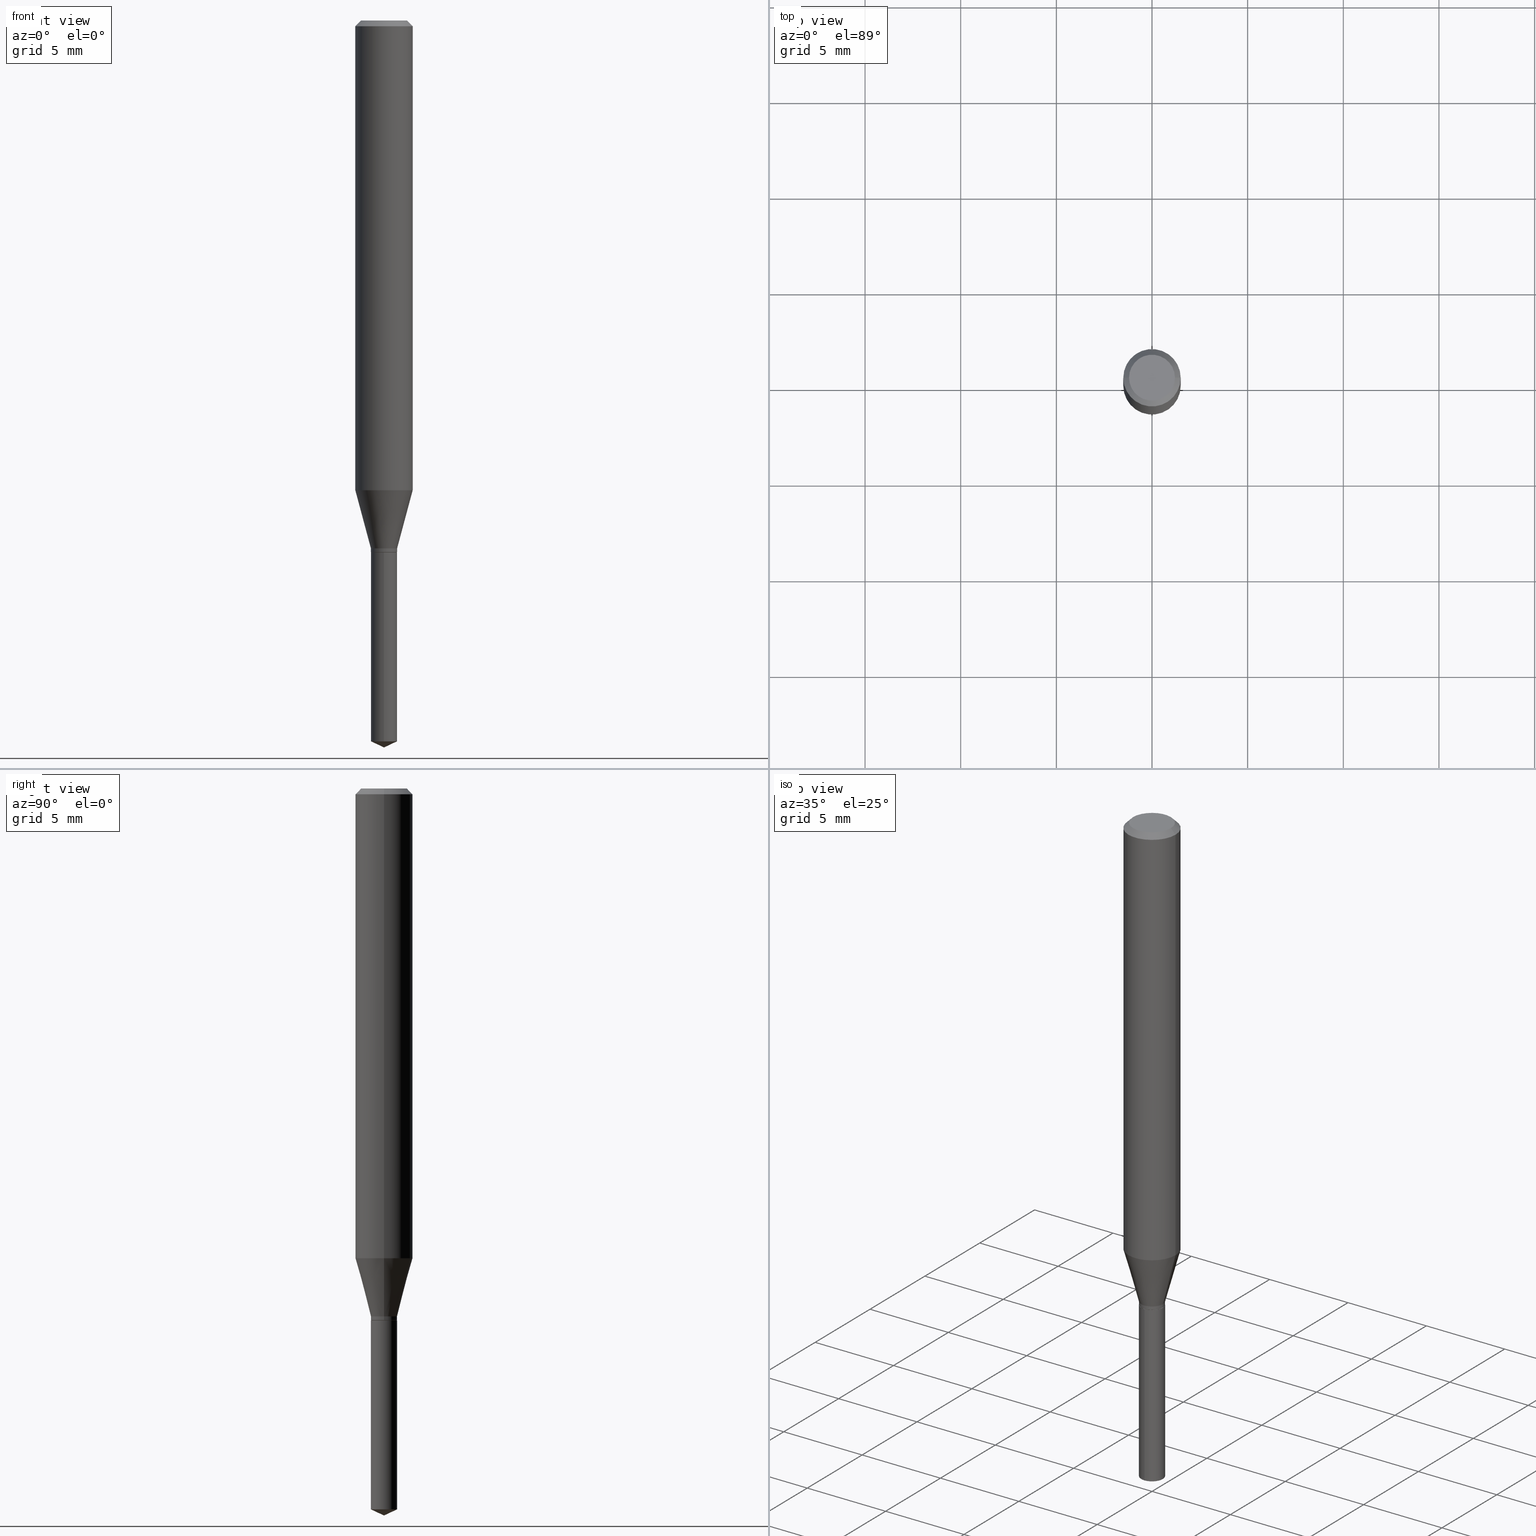
[diagram: canonical four-view strip — front | top / right | iso, engineering-drawing reading convention]
A machine part, canonical four-view strip (front | top / right | iso — engineering-drawing reading convention). The complete STEP part file that produces these views, byte-faithful:
ISO-10303-21;
HEADER;
FILE_DESCRIPTION (( 'STEP AP203' ),
    '1' );
FILE_NAME ('07525.STEP',
    '2024-04-23T22:28:46',
    ( '' ),
    ( '' ),
    'SwSTEP 2.0',
    'SolidWorks 2023',
    '' );
FILE_SCHEMA (( 'CONFIG_CONTROL_DESIGN' ));
ENDSEC;

DATA;
#1 = VECTOR ( 'NONE', #467, 39.37007874015748143 ) ;
#2 = ORIENTED_EDGE ( 'NONE', *, *, #277, .T. ) ;
#3 = APPROVAL_STATUS ( 'not_yet_approved' ) ;
#4 = CC_DESIGN_DATE_AND_TIME_ASSIGNMENT ( #196, #384, ( #94 ) ) ;
#5 = ORIENTED_EDGE ( 'NONE', *, *, #105, .T. ) ;
#6 = APPROVAL_ROLE ( '' ) ;
#7 = ORIENTED_EDGE ( 'NONE', *, *, #219, .F. ) ;
#8 = DATE_AND_TIME ( #381, #191 ) ;
#9 = EDGE_LOOP ( 'NONE', ( #383, #376 ) ) ;
#10 = CARTESIAN_POINT ( 'NONE',  ( -0.02695000000000000173, -3.601654059231846417E-15, -1.086399999999999810 ) ) ;
#11 = CARTESIAN_POINT ( 'NONE',  ( -0.02695000000000000173, 1.914912672873470124E-16, -1.325653006823697257E-30 ) ) ;
#12 = CC_DESIGN_PERSON_AND_ORGANIZATION_ASSIGNMENT ( #335, #457, ( #94 ) ) ;
#13 = FACE_OUTER_BOUND ( 'NONE', #307, .T. ) ;
#14 = ADVANCED_BREP_SHAPE_REPRESENTATION ( '07525', ( #72, #237, #394 ), #73 ) ;
#15 = DIRECTION ( 'NONE',  ( 1.000000000000000000, -6.982962677686266711E-15, 4.876176775795935793E-29 ) ) ;
#16 = AXIS2_PLACEMENT_3D ( 'NONE', #321, #162, #126 ) ;
#17 = EDGE_CURVE ( 'NONE', #186, #310, #37, .T. ) ;
#18 = CARTESIAN_POINT ( 'NONE',  ( 3.627934243417300809E-29, -5.179727030492415655E-15, -1.483533008612722748 ) ) ;
#19 = CARTESIAN_POINT ( 'NONE',  ( -0.05905000000000011628, -2.955294458470109520E-15, -0.9666011690770388576 ) ) ;
#20 = CARTESIAN_POINT ( 'NONE',  ( 2.676565608369631794E-29, -3.821426325363822773E-15, -1.094499999999999806 ) ) ;
#21 = AXIS2_PLACEMENT_3D ( 'NONE', #215, #201, #354 ) ;
#22 = LINE ( 'NONE', #450, #382 ) ;
#23 =( CONVERSION_BASED_UNIT ( 'INCH', #445 ) LENGTH_UNIT ( ) NAMED_UNIT ( #342 ) );
#24 = CARTESIAN_POINT ( 'NONE',  ( 2.676565608369631794E-29, -3.821426325363822773E-15, -1.094499999999999806 ) ) ;
#25 = ORIENTED_EDGE ( 'NONE', *, *, #194, .T. ) ;
#26 = FACE_OUTER_BOUND ( 'NONE', #152, .T. ) ;
#27 = VECTOR ( 'NONE', #205, 39.37007874015748143 ) ;
#28 = ADVANCED_FACE ( 'NONE', ( #253 ), #55, .T. ) ;
#29 = DIRECTION ( 'NONE',  ( -6.328713451373368590E-15, -0.9063077870366483824, 0.4226182617407029940 ) ) ;
#30 = CC_DESIGN_SECURITY_CLASSIFICATION ( #240, ( #282 ) ) ;
#31 = VERTEX_POINT ( 'NONE', #435 ) ;
#32 = FACE_OUTER_BOUND ( 'NONE', #262, .T. ) ;
#33 = ORIENTED_EDGE ( 'NONE', *, *, #219, .T. ) ;
#34 = APPROVAL_DATE_TIME ( #232, #100 ) ;
#35 = ORIENTED_EDGE ( 'NONE', *, *, #286, .F. ) ;
#36 = EDGE_CURVE ( 'NONE', #42, #462, #484, .T. ) ;
#37 = CIRCLE ( 'NONE', #421, 0.02695000000000000173 ) ;
#38 = VECTOR ( 'NONE', #160, 39.37007874015748143 ) ;
#39 = ORGANIZATION ( 'UNSPECIFIED', 'UNSPECIFIED', '' ) ;
#40 = COORDINATED_UNIVERSAL_TIME_OFFSET ( 5, 0, .BEHIND. ) ;
#41 = EDGE_LOOP ( 'NONE', ( #141, #459, #177, #231 ) ) ;
#42 = VERTEX_POINT ( 'NONE', #356 ) ;
#43 = PERSON_AND_ORGANIZATION ( #436, #39 ) ;
#44 = DIRECTION ( 'NONE',  ( 1.000000000000000000, -6.982962677686265133E-15, 0.000000000000000000 ) ) ;
#45 = EDGE_CURVE ( 'NONE', #312, #106, #61, .T. ) ;
#46 = CIRCLE ( 'NONE', #375, 0.02695000000000000173 ) ;
#47 = DIRECTION ( 'NONE',  ( 1.000000000000000000, -6.982962677686266711E-15, 4.876185090822587894E-29 ) ) ;
#48 = LINE ( 'NONE', #451, #27 ) ;
#49 = DIRECTION ( 'NONE',  ( -2.445470214571802116E-29, 3.491479321953280158E-15, 1.000000000000000000 ) ) ;
#50 = UNCERTAINTY_MEASURE_WITH_UNIT (LENGTH_MEASURE( 1.000000000000000082E-05 ), #23, 'distance_accuracy_value', 'NONE');
#51 = LINE ( 'NONE', #399, #1 ) ;
#52 = EDGE_CURVE ( 'NONE', #462, #42, #347, .T. ) ;
#53 = DIRECTION ( 'NONE',  ( -2.445468806185136597E-29, 3.491481338843145583E-15, 1.000000000000000000 ) ) ;
#54 = PLANE ( 'NONE',  #178 ) ;
#55 = CONICAL_SURFACE ( 'NONE', #289, 0.02645000000000000129, 0.7853981633975507526 ) ;
#56 = CIRCLE ( 'NONE', #98, 0.04724000000000000421 ) ;
#57 = CARTESIAN_POINT ( 'NONE',  ( 8.265746106709734507E-48, -1.180129479067563789E-33, -3.380025165646692144E-19 ) ) ;
#58 = CC_DESIGN_APPROVAL ( #100, ( #94 ) ) ;
#59 = DIRECTION ( 'NONE',  ( -2.445468806185136597E-29, 3.491481338843145583E-15, 1.000000000000000000 ) ) ;
#60 = CARTESIAN_POINT ( 'NONE',  ( -0.02695000000000000173, -3.614921688319449844E-15, -1.093999999999999861 ) ) ;
#62 = ORIENTED_EDGE ( 'NONE', *, *, #165, .T. ) ;
#61 = CIRCLE ( 'NONE', #346, 0.02695000000000000173 ) ;
#63 = AXIS2_PLACEMENT_3D ( 'NONE', #411, #331, #481 ) ;
#64 = DIRECTION ( 'NONE',  ( -2.445468806185136597E-29, 3.491481338843145583E-15, 1.000000000000000000 ) ) ;
#65 = EDGE_LOOP ( 'NONE', ( #275, #84, #349, #386 ) ) ;
#66 = CARTESIAN_POINT ( 'NONE',  ( -0.02645000000000000129, -3.633487771755275673E-15, -1.094499999999999806 ) ) ;
#67 =( LENGTH_UNIT ( ) NAMED_UNIT ( * ) SI_UNIT ( $, .METRE. ) );
#68 = DIRECTION ( 'NONE',  ( 1.000000000000000000, -6.982962677686265922E-15, 4.876176775795935793E-29 ) ) ;
#69 = EDGE_LOOP ( 'NONE', ( #313, #224, #380, #170 ) ) ;
#70 =( NAMED_UNIT ( * ) SI_UNIT ( $, .STERADIAN. ) SOLID_ANGLE_UNIT ( ) );
#71 = CIRCLE ( 'NONE', #470, 0.04724000000000000421 ) ;
#72 = MANIFOLD_SOLID_BREP ( 'Body-Move/Copy2[1]', #146 ) ;
#73 =( GEOMETRIC_REPRESENTATION_CONTEXT ( 3 ) GLOBAL_UNCERTAINTY_ASSIGNED_CONTEXT ( ( #50 ) ) GLOBAL_UNIT_ASSIGNED_CONTEXT ( ( #23, #333, #70 ) ) REPRESENTATION_CONTEXT ( 'NONE', 'WORKASPACE' ) );
#74 = EDGE_LOOP ( 'NONE', ( #62, #2, #107, #420 ) ) ;
#75 = APPROVAL_STATUS ( 'not_yet_approved' ) ;
#76 = CARTESIAN_POINT ( 'NONE',  ( 0.05905000000000006077, -4.123439461173744764E-16, 2.879382386107503023E-30 ) ) ;
#77 = EDGE_CURVE ( 'NONE', #332, #42, #395, .T. ) ;
#78 = ORIENTED_EDGE ( 'NONE', *, *, #157, .T. ) ;
#79 = SHAPE_DEFINITION_REPRESENTATION ( #427, #14 ) ;
#80 = CC_DESIGN_PERSON_AND_ORGANIZATION_ASSIGNMENT ( #43, #351, ( #282 ) ) ;
#81 = VERTEX_POINT ( 'NONE', #19 ) ;
#82 = APPROVAL_ROLE ( '' ) ;
#83 = CIRCLE ( 'NONE', #256, 0.02695000000000000173 ) ;
#84 = ORIENTED_EDGE ( 'NONE', *, *, #324, .T. ) ;
#85 = EDGE_LOOP ( 'NONE', ( #172, #267, #300 ) ) ;
#86 = DATE_TIME_ROLE ( 'classification_date' ) ;
#87 = ADVANCED_FACE ( 'NONE', ( #437 ), #464, .T. ) ;
#88 = DIRECTION ( 'NONE',  ( -2.445468806185136597E-29, 3.491481338843145583E-15, 1.000000000000000000 ) ) ;
#89 = VECTOR ( 'NONE', #184, 39.37007874015747433 ) ;
#90 = CARTESIAN_POINT ( 'NONE',  ( 2.888098660104663328E-31, -4.123439461173779030E-17, -0.01181000000000006871 ) ) ;
#91 = PRODUCT ( '07525', '07525', '', ( #308 ) ) ;
#92 = LINE ( 'NONE', #10, #89 ) ;
#93 = CARTESIAN_POINT ( 'NONE',  ( 3.658667988020872822E-29, -5.223602213574301462E-15, -1.496099999999999985 ) ) ;
#94 = PRODUCT_DEFINITION ( 'UNKNOWN', '', #282, #486 ) ;
#95 = DIRECTION ( 'NONE',  ( -2.445468806185136597E-29, 3.491481338843145583E-15, 1.000000000000000000 ) ) ;
#96 = DIRECTION ( 'NONE',  ( -2.445468806185136597E-29, 3.491481338843145583E-15, 1.000000000000000000 ) ) ;
#97 = DIRECTION ( 'NONE',  ( -2.445470214571802116E-29, 3.491479321953280158E-15, 1.000000000000000000 ) ) ;
#98 = AXIS2_PLACEMENT_3D ( 'NONE', #402, #59, #47 ) ;
#99 = LINE ( 'NONE', #405, #125 ) ;
#100 = APPROVAL ( #75, 'UNSPECIFIED' ) ;
#101 = ORIENTED_EDGE ( 'NONE', *, *, #352, .F. ) ;
#102 = CARTESIAN_POINT ( 'NONE',  ( -0.02645000000000000129, -3.630838544581165261E-15, -1.094499999999999806 ) ) ;
#103 = CIRCLE ( 'NONE', #401, 0.02645000000000000129 ) ;
#104 = DIRECTION ( 'NONE',  ( 1.000000000000000000, -6.982962677686266711E-15, 4.876176775795935793E-29 ) ) ;
#105 = EDGE_CURVE ( 'NONE', #388, #271, #83, .T. ) ;
#106 = VERTEX_POINT ( 'NONE', #325 ) ;
#107 = ORIENTED_EDGE ( 'NONE', *, *, #52, .F. ) ;
#108 = DIRECTION ( 'NONE',  ( -1.000000000000000000, 6.982962677686266711E-15, 0.000000000000000000 ) ) ;
#109 = ORIENTED_EDGE ( 'NONE', *, *, #17, .F. ) ;
#110 = ADVANCED_FACE ( 'NONE', ( #360 ), #323, .T. ) ;
#111 = CARTESIAN_POINT ( 'NONE',  ( 0.02695000000000000173, -4.007871428858045665E-15, -1.093999999999999861 ) ) ;
#112 = ORIENTED_EDGE ( 'NONE', *, *, #294, .F. ) ;
#113 = DIRECTION ( 'NONE',  ( -1.000000000000000000, 6.982962677686265922E-15, -4.876176775795935793E-29 ) ) ;
#114 = VERTEX_POINT ( 'NONE', #93 ) ;
#115 = PERSON_AND_ORGANIZATION ( #436, #39 ) ;
#116 = ORIENTED_EDGE ( 'NONE', *, *, #352, .T. ) ;
#117 = CIRCLE ( 'NONE', #461, 0.02695000000000000173 ) ;
#118 = ORIENTED_EDGE ( 'NONE', *, *, #173, .T. ) ;
#119 = EDGE_CURVE ( 'NONE', #280, #379, #103, .T. ) ;
#120 = AXIS2_PLACEMENT_3D ( 'NONE', #400, #322, #263 ) ;
#121 = DIRECTION ( 'NONE',  ( -2.445468806185136597E-29, 3.491481338843145583E-15, 1.000000000000000000 ) ) ;
#122 = CC_DESIGN_DATE_AND_TIME_ASSIGNMENT ( #468, #86, ( #240 ) ) ;
#123 = DIRECTION ( 'NONE',  ( -2.445468806185136597E-29, 3.491481338843145583E-15, 1.000000000000000000 ) ) ;
#124 = EDGE_CURVE ( 'NONE', #106, #271, #51, .T. ) ;
#125 = VECTOR ( 'NONE', #444, 39.37007874015748143 ) ;
#126 = DIRECTION ( 'NONE',  ( -6.982962677686267499E-15, -1.000000000000000000, 3.520397390770472803E-15 ) ) ;
#127 = APPROVAL_PERSON_ORGANIZATION ( #369, #100, #406 ) ;
#128 = FACE_OUTER_BOUND ( 'NONE', #69, .T. ) ;
#129 = DIRECTION ( 'NONE',  ( 1.000000000000000000, -6.982962677686265133E-15, 0.000000000000000000 ) ) ;
#130 = CYLINDRICAL_SURFACE ( 'NONE', #439, 0.02695000000000000173 ) ;
#131 = DIRECTION ( 'NONE',  ( -2.445468806185136597E-29, 3.491481338843145583E-15, 1.000000000000000000 ) ) ;
#132 = DIRECTION ( 'NONE',  ( 0.7071067811866199593, -2.468850131083015945E-15, 0.7071067811864750752 ) ) ;
#133 = VECTOR ( 'NONE', #132, 39.37007874015748143 ) ;
#134 = EDGE_CURVE ( 'NONE', #310, #241, #391, .T. ) ;
#135 = LINE ( 'NONE', #66, #247 ) ;
#136 = CC_DESIGN_PERSON_AND_ORGANIZATION_ASSIGNMENT ( #392, #238, ( #240 ) ) ;
#137 = CARTESIAN_POINT ( 'NONE',  ( 1.914912672873833000E-16, 0.02694999999999617840, -1.094500000000000028 ) ) ;
#138 = CYLINDRICAL_SURFACE ( 'NONE', #305, 0.05905000000000006077 ) ;
#139 = ADVANCED_FACE ( 'NONE', ( #13 ), #54, .F. ) ;
#140 = DIRECTION ( 'NONE',  ( -2.445470214571802396E-29, 3.491479321953280158E-15, 1.000000000000000000 ) ) ;
#141 = ORIENTED_EDGE ( 'NONE', *, *, #324, .F. ) ;
#142 = AXIS2_PLACEMENT_3D ( 'NONE', #24, #334, #374 ) ;
#143 = CC_DESIGN_PERSON_AND_ORGANIZATION_ASSIGNMENT ( #424, #276, ( #282 ) ) ;
#144 = DIRECTION ( 'NONE',  ( 1.000000000000000000, -6.982962677686264344E-15, 0.000000000000000000 ) ) ;
#145 = ORIENTED_EDGE ( 'NONE', *, *, #248, .T. ) ;
#146 = CLOSED_SHELL ( 'NONE', ( #417, #147, #214, #396, #139 ) ) ;
#147 = ADVANCED_FACE ( 'NONE', ( #475 ), #281, .T. ) ;
#148 = AXIS2_PLACEMENT_3D ( 'NONE', #245, #88, #15 ) ;
#149 = ORIENTED_EDGE ( 'NONE', *, *, #299, .T. ) ;
#150 = ORIENTED_EDGE ( 'NONE', *, *, #269, .F. ) ;
#151 = APPROVAL_DATE_TIME ( #8, #408 ) ;
#152 = EDGE_LOOP ( 'NONE', ( #112, #197, #343, #425 ) ) ;
#153 = APPROVAL_DATE_TIME ( #389, #279 ) ;
#154 = ORIENTED_EDGE ( 'NONE', *, *, #202, .T. ) ;
#155 = CARTESIAN_POINT ( 'NONE',  ( 2.675342873966538993E-29, -3.819680584694400481E-15, -1.093999999999999861 ) ) ;
#156 = CARTESIAN_POINT ( 'NONE',  ( 2.676565608369631234E-29, -3.821426325363821984E-15, -1.094499999999999806 ) ) ;
#157 = EDGE_CURVE ( 'NONE', #332, #31, #56, .T. ) ;
#158 = DIRECTION ( 'NONE',  ( 6.982962677686265922E-15, 1.000000000000000000, -3.491479321953280158E-15 ) ) ;
#159 = AXIS2_PLACEMENT_3D ( 'NONE', #250, #397, #108 ) ;
#160 = DIRECTION ( 'NONE',  ( -0.7071067811865453523, 2.468850131082234184E-15, -0.7071067811865496822 ) ) ;
#161 = APPROVAL_PERSON_ORGANIZATION ( #204, #279, #6 ) ;
#162 = DIRECTION ( 'NONE',  ( -2.445470214571802116E-29, 3.491479321953280158E-15, 1.000000000000000000 ) ) ;
#163 = DIRECTION ( 'NONE',  ( -6.982962677686265133E-15, -1.000000000000000000, 5.068363624609022710E-15 ) ) ;
#164 = DIRECTION ( 'NONE',  ( -6.982962677686265133E-15, -1.000000000000000000, 0.000000000000000000 ) ) ;
#165 = EDGE_CURVE ( 'NONE', #241, #81, #291, .T. ) ;
#166 = DIRECTION ( 'NONE',  ( -2.445470214571802116E-29, 3.491479321953280158E-15, 1.000000000000000000 ) ) ;
#167 = DIRECTION ( 'NONE',  ( 1.000000000000000000, -6.982962677686264344E-15, 0.000000000000000000 ) ) ;
#168 = VECTOR ( 'NONE', #207, 39.37007874015747433 ) ;
#169 = PRODUCT_RELATED_PRODUCT_CATEGORY ( 'detail', '', ( #91 ) ) ;
#170 = ORIENTED_EDGE ( 'NONE', *, *, #248, .F. ) ;
#171 = CARTESIAN_POINT ( 'NONE',  ( 6.623467627228202224E-29, 1.830762009353637179E-15, -1.094499999999999806 ) ) ;
#172 = ORIENTED_EDGE ( 'NONE', *, *, #194, .F. ) ;
#173 = EDGE_CURVE ( 'NONE', #278, #186, #285, .T. ) ;
#174 = DIRECTION ( 'NONE',  ( -6.982962677686267499E-15, -1.000000000000000000, 3.520397390770472803E-15 ) ) ;
#175 = CALENDAR_DATE ( 2024, 23, 4 ) ;
#176 = CARTESIAN_POINT ( 'NONE',  ( -1.881908441636181167E-16, -0.02695000000000382159, -1.094499999999999806 ) ) ;
#177 = ORIENTED_EDGE ( 'NONE', *, *, #134, .T. ) ;
#178 = AXIS2_PLACEMENT_3D ( 'NONE', #469, #428, #158 ) ;
#179 = CYLINDRICAL_SURFACE ( 'NONE', #298, 0.02695000000000000173 ) ;
#180 = AXIS2_PLACEMENT_3D ( 'NONE', #412, #367, #345 ) ;
#181 = LINE ( 'NONE', #274, #297 ) ;
#182 = ORIENTED_EDGE ( 'NONE', *, *, #254, .T. ) ;
#183 = DIRECTION ( 'NONE',  ( 0.000000000000000000, 0.000000000000000000, 1.000000000000000000 ) ) ;
#184 = DIRECTION ( 'NONE',  ( -0.2588190451025213501, 5.211531920934551042E-15, 0.9659258262890682012 ) ) ;
#185 = CC_DESIGN_PERSON_AND_ORGANIZATION_ASSIGNMENT ( #452, #272, ( #91 ) ) ;
#186 = VERTEX_POINT ( 'NONE', #261 ) ;
#187 = COORDINATED_UNIVERSAL_TIME_OFFSET ( 5, 0, .BEHIND. ) ;
#188 = ORIENTED_EDGE ( 'NONE', *, *, #318, .T. ) ;
#189 = APPROVAL_STATUS ( 'not_yet_approved' ) ;
#190 = CONICAL_SURFACE ( 'NONE', #159, 0.05904999999999999832, 0.7853981633974452814 ) ;
#191 = LOCAL_TIME ( 18, 28, 46.00000000000000000, #419 ) ;
#192 = ORIENTED_EDGE ( 'NONE', *, *, #370, .F. ) ;
#193 = SECURITY_CLASSIFICATION_LEVEL ( 'unclassified' ) ;
#194 = EDGE_CURVE ( 'NONE', #114, #312, #22, .T. ) ;
#195 = ORIENTED_EDGE ( 'NONE', *, *, #277, .F. ) ;
#196 = DATE_AND_TIME ( #314, #447 ) ;
#197 = ORIENTED_EDGE ( 'NONE', *, *, #157, .F. ) ;
#198 = COORDINATED_UNIVERSAL_TIME_OFFSET ( 5, 0, .BEHIND. ) ;
#199 = LINE ( 'NONE', #76, #414 ) ;
#200 = CIRCLE ( 'NONE', #142, 0.02695000000000000173 ) ;
#201 = DIRECTION ( 'NONE',  ( -2.445468806185136597E-29, 3.491481338843145583E-15, 1.000000000000000000 ) ) ;
#202 = EDGE_CURVE ( 'NONE', #379, #280, #239, .T. ) ;
#203 = CONICAL_SURFACE ( 'NONE', #180, 0.05904999999999999832, 0.7853981633974452814 ) ;
#204 = PERSON_AND_ORGANIZATION ( #436, #39 ) ;
#205 = DIRECTION ( 'NONE',  ( -2.445468806185136877E-29, 3.491481338843145188E-15, 1.000000000000000000 ) ) ;
#206 = APPLICATION_CONTEXT ( 'configuration controlled 3d designs of mechanical parts and assemblies' ) ;
#207 = DIRECTION ( 'NONE',  ( 0.2588190451025213501, 1.565188264969621968E-15, 0.9659258262890682012 ) ) ;
#208 = DIRECTION ( 'NONE',  ( -6.982962677686265133E-15, -1.000000000000000000, 5.068363624609022710E-15 ) ) ;
#209 = CARTESIAN_POINT ( 'NONE',  ( -0.05904999999999999832, 3.711095515056362547E-16, -0.01181000000000006871 ) ) ;
#210 = DIRECTION ( 'NONE',  ( 1.000000000000000000, -6.982962677686265133E-15, 0.000000000000000000 ) ) ;
#211 = CIRCLE ( 'NONE', #63, 0.05905000000000011628 ) ;
#212 = CARTESIAN_POINT ( 'NONE',  ( 2.676565608369631794E-29, -3.821426325363822773E-15, -1.094499999999999806 ) ) ;
#213 = DIRECTION ( 'NONE',  ( 1.000000000000000000, -6.982962677686266711E-15, 4.876185090822587894E-29 ) ) ;
#214 = ADVANCED_FACE ( 'NONE', ( #371 ), #359, .T. ) ;
#215 = CARTESIAN_POINT ( 'NONE',  ( 2.363793006999983413E-29, -3.374869943936449013E-15, -0.9666011690770388576 ) ) ;
#216 = ORIENTED_EDGE ( 'NONE', *, *, #119, .T. ) ;
#217 = CARTESIAN_POINT ( 'NONE',  ( 0.02645000000000000129, -4.006125688188624162E-15, -1.094499999999999806 ) ) ;
#218 = VECTOR ( 'NONE', #244, 39.37007874015748143 ) ;
#219 = EDGE_CURVE ( 'NONE', #271, #388, #200, .T. ) ;
#220 = ORIENTED_EDGE ( 'NONE', *, *, #404, .T. ) ;
#221 = DIRECTION ( 'NONE',  ( 2.438088387897960049E-29, -3.491481338843145188E-15, -1.000000000000000000 ) ) ;
#222 = CARTESIAN_POINT ( 'NONE',  ( 2.676565608369631234E-29, -3.821426325363821984E-15, -1.094499999999999806 ) ) ;
#223 = DIRECTION ( 'NONE',  ( 1.000000000000000000, 0.000000000000000000, 0.000000000000000000 ) ) ;
#224 = ORIENTED_EDGE ( 'NONE', *, *, #124, .T. ) ;
#225 = DIRECTION ( 'NONE',  ( -2.445468806185136597E-29, 3.491481338843145583E-15, 1.000000000000000000 ) ) ;
#226 = ORIENTED_EDGE ( 'NONE', *, *, #294, .T. ) ;
#227 = VECTOR ( 'NONE', #140, 39.37007874015748143 ) ;
#228 = CARTESIAN_POINT ( 'NONE',  ( 0.000000000000000000, 0.000000000000000000, 0.000000000000000000 ) ) ;
#229 = ADVANCED_FACE ( 'NONE', ( #482 ), #337, .F. ) ;
#230 = LOCAL_TIME ( 18, 28, 46.00000000000000000, #187 ) ;
#231 = ORIENTED_EDGE ( 'NONE', *, *, #254, .F. ) ;
#232 = DATE_AND_TIME ( #175, #230 ) ;
#233 = DIRECTION ( 'NONE',  ( 6.439704144417024042E-15, 0.9063077870366512689, 0.4226182617406966657 ) ) ;
#234 = ORIENTED_EDGE ( 'NONE', *, *, #77, .F. ) ;
#235 = APPLICATION_CONTEXT ( 'configuration controlled 3d designs of mechanical parts and assemblies' ) ;
#236 = EDGE_LOOP ( 'NONE', ( #456, #226, #448, #234 ) ) ;
#237 = MANIFOLD_SOLID_BREP ( 'Body-Move/Copy2[2]', #365 ) ;
#238 = PERSON_AND_ORGANIZATION_ROLE ( 'classification_officer' ) ;
#239 = CIRCLE ( 'NONE', #454, 0.02645000000000000129 ) ;
#240 = SECURITY_CLASSIFICATION ( '', '', #193 ) ;
#241 = VERTEX_POINT ( 'NONE', #303 ) ;
#242 = EDGE_LOOP ( 'NONE', ( #418, #220, #145, #7 ) ) ;
#243 = CALENDAR_DATE ( 2024, 23, 4 ) ;
#244 = DIRECTION ( 'NONE',  ( 0.7071067811865453523, -7.319954787623248157E-15, -0.7071067811865496822 ) ) ;
#245 = CARTESIAN_POINT ( 'NONE',  ( 0.000000000000000000, 0.000000000000000000, 0.000000000000000000 ) ) ;
#246 = CARTESIAN_POINT ( 'NONE',  ( -1.881908441636086010E-16, -0.02695000000000517468, -1.483533008612722748 ) ) ;
#247 = VECTOR ( 'NONE', #440, 39.37007874015748143 ) ;
#248 = EDGE_CURVE ( 'NONE', #312, #388, #328, .T. ) ;
#249 = DIRECTION ( 'NONE',  ( 1.000000000000000000, -6.982962677686266711E-15, 0.000000000000000000 ) ) ;
#250 = CARTESIAN_POINT ( 'NONE',  ( 2.888098660104663328E-31, -4.123439461173779030E-17, -0.01181000000000006871 ) ) ;
#251 = DIRECTION ( 'NONE',  ( -2.445468806185136597E-29, 3.491481338843145583E-15, 1.000000000000000000 ) ) ;
#252 = CARTESIAN_POINT ( 'NONE',  ( 2.656757311039532110E-29, -3.793145326519192838E-15, -1.086399999999999810 ) ) ;
#253 = FACE_OUTER_BOUND ( 'NONE', #366, .T. ) ;
#254 = EDGE_CURVE ( 'NONE', #81, #241, #211, .T. ) ;
#255 = CYLINDRICAL_SURFACE ( 'NONE', #341, 0.02695000000000000173 ) ;
#256 = AXIS2_PLACEMENT_3D ( 'NONE', #212, #97, #433 ) ;
#257 = DIRECTION ( 'NONE',  ( 1.000000000000000000, -6.982962677686264344E-15, 0.000000000000000000 ) ) ;
#258 = CC_DESIGN_APPROVAL ( #279, ( #240 ) ) ;
#259 = CARTESIAN_POINT ( 'NONE',  ( -1.881908441636181167E-16, -0.02695000000000382159, -1.094499999999999806 ) ) ;
#260 = EDGE_CURVE ( 'NONE', #280, #278, #135, .T. ) ;
#261 = CARTESIAN_POINT ( 'NONE',  ( -0.02695000000000000173, -3.614921688319449844E-15, -1.086399999999999810 ) ) ;
#262 = EDGE_LOOP ( 'NONE', ( #302, #216, #311, #344 ) ) ;
#263 = DIRECTION ( 'NONE',  ( -6.982962677686265133E-15, -1.000000000000000000, 0.000000000000000000 ) ) ;
#264 = PLANE ( 'NONE',  #432 ) ;
#265 = CARTESIAN_POINT ( 'NONE',  ( 4.132873053354867254E-48, -5.900647395337818946E-34, -1.690012582823346072E-19 ) ) ;
#266 = DIRECTION ( 'NONE',  ( -2.438088387897960049E-29, 3.491481338843145188E-15, 1.000000000000000000 ) ) ;
#267 = ORIENTED_EDGE ( 'NONE', *, *, #370, .T. ) ;
#268 = FACE_OUTER_BOUND ( 'NONE', #317, .T. ) ;
#269 = EDGE_CURVE ( 'NONE', #379, #353, #477, .T. ) ;
#271 = VERTEX_POINT ( 'NONE', #137 ) ;
#270 = AXIS2_PLACEMENT_3D ( 'NONE', #90, #251, #296 ) ;
#272 = PERSON_AND_ORGANIZATION_ROLE ( 'design_owner' ) ;
#273 = CONICAL_SURFACE ( 'NONE', #378, 0.02645000000000000129, 0.7853981633975507526 ) ;
#274 = CARTESIAN_POINT ( 'NONE',  ( 3.658668015054778287E-29, -5.223602213574301462E-15, -1.496099999999999985 ) ) ;
#275 = ORIENTED_EDGE ( 'NONE', *, *, #286, .T. ) ;
#276 = PERSON_AND_ORGANIZATION_ROLE ( 'creator' ) ;
#277 = EDGE_CURVE ( 'NONE', #81, #42, #99, .T. ) ;
#278 = VERTEX_POINT ( 'NONE', #60 ) ;
#279 = APPROVAL ( #189, 'UNSPECIFIED' ) ;
#280 = VERTEX_POINT ( 'NONE', #102 ) ;
#281 = CONICAL_SURFACE ( 'NONE', #16, 84.42940631927388040, 1.134464013796313786 ) ;
#282 = PRODUCT_DEFINITION_FORMATION_WITH_SPECIFIED_SOURCE ( 'ANY', '', #91, .NOT_KNOWN. ) ;
#283 = ORIENTED_EDGE ( 'NONE', *, *, #173, .F. ) ;
#284 = CARTESIAN_POINT ( 'NONE',  ( 2.656757311039532110E-29, -3.793145326519192838E-15, -1.086399999999999810 ) ) ;
#285 = LINE ( 'NONE', #11, #485 ) ;
#286 = EDGE_CURVE ( 'NONE', #310, #186, #338, .T. ) ;
#287 = CARTESIAN_POINT ( 'NONE',  ( 0.02695000000000000173, -3.981336170682838022E-15, -1.086399999999999810 ) ) ;
#288 = DIRECTION ( 'NONE',  ( 1.000000000000000000, -6.982962677686265133E-15, 0.000000000000000000 ) ) ;
#289 = AXIS2_PLACEMENT_3D ( 'NONE', #156, #358, #320 ) ;
#290 = LINE ( 'NONE', #466, #218 ) ;
#291 = CIRCLE ( 'NONE', #21, 0.05905000000000011628 ) ;
#292 = CARTESIAN_POINT ( 'NONE',  ( 2.888098660104663328E-31, -4.123439461173779030E-17, -0.01181000000000006871 ) ) ;
#293 = CARTESIAN_POINT ( 'NONE',  ( 2.656757311039532110E-29, -3.793145326519192838E-15, -1.086399999999999810 ) ) ;
#294 = EDGE_CURVE ( 'NONE', #31, #462, #290, .T. ) ;
#295 = CARTESIAN_POINT ( 'NONE',  ( 0.000000000000000000, 0.000000000000000000, 0.000000000000000000 ) ) ;
#296 = DIRECTION ( 'NONE',  ( 1.000000000000000000, -6.982962677686266711E-15, 0.000000000000000000 ) ) ;
#297 = VECTOR ( 'NONE', #233, 39.37007874015748143 ) ;
#298 = AXIS2_PLACEMENT_3D ( 'NONE', #413, #410, #487 ) ;
#299 = EDGE_CURVE ( 'NONE', #353, #278, #46, .T. ) ;
#300 = ORIENTED_EDGE ( 'NONE', *, *, #45, .F. ) ;
#301 = DIRECTION ( 'NONE',  ( -2.445468806185136597E-29, 3.491481338843145583E-15, 1.000000000000000000 ) ) ;
#302 = ORIENTED_EDGE ( 'NONE', *, *, #260, .F. ) ;
#303 = CARTESIAN_POINT ( 'NONE',  ( 0.05905000000000011628, -3.787213890053824327E-15, -0.9666011690770388576 ) ) ;
#304 = CARTESIAN_POINT ( 'NONE',  ( 0.000000000000000000, 0.000000000000000000, 0.000000000000000000 ) ) ;
#305 = AXIS2_PLACEMENT_3D ( 'NONE', #304, #64, #104 ) ;
#306 = DIRECTION ( 'NONE',  ( -2.445468806185136597E-29, 3.491481338843145583E-15, 1.000000000000000000 ) ) ;
#307 = EDGE_LOOP ( 'NONE', ( #5, #33 ) ) ;
#308 = MECHANICAL_CONTEXT ( 'NONE', #206, 'mechanical' ) ;
#310 = VERTEX_POINT ( 'NONE', #287 ) ;
#309 = AXIS2_PLACEMENT_3D ( 'NONE', #364, #368, #174 ) ;
#311 = ORIENTED_EDGE ( 'NONE', *, *, #269, .T. ) ;
#312 = VERTEX_POINT ( 'NONE', #246 ) ;
#313 = ORIENTED_EDGE ( 'NONE', *, *, #45, .T. ) ;
#314 = CALENDAR_DATE ( 2024, 23, 4 ) ;
#315 = AXIS2_PLACEMENT_3D ( 'NONE', #473, #398, #129 ) ;
#316 = LOCAL_TIME ( 18, 28, 46.00000000000000000, #40 ) ;
#317 = EDGE_LOOP ( 'NONE', ( #149, #118, #35, #101 ) ) ;
#318 = EDGE_CURVE ( 'NONE', #241, #462, #199, .T. ) ;
#319 = DIRECTION ( 'NONE',  ( 1.000000000000000000, -6.982962677686265133E-15, 0.000000000000000000 ) ) ;
#320 = DIRECTION ( 'NONE',  ( 1.000000000000000000, -6.982962677686264344E-15, 0.000000000000000000 ) ) ;
#321 = CARTESIAN_POINT ( 'NONE',  ( -9.261968845786000133E-28, 1.322362114038720264E-13, 37.87397874015748300 ) ) ;
#322 = DIRECTION ( 'NONE',  ( -2.445470214571802116E-29, 3.491479321953280158E-15, 1.000000000000000000 ) ) ;
#323 = CONICAL_SURFACE ( 'NONE', #315, 0.02695000000000000173, 0.2617993877991500740 ) ;
#324 = EDGE_CURVE ( 'NONE', #186, #81, #92, .T. ) ;
#325 = CARTESIAN_POINT ( 'NONE',  ( 1.914912672873832260E-16, 0.02694999999999482185, -1.483533008612722748 ) ) ;
#326 = APPROVAL_PERSON_ORGANIZATION ( #115, #408, #82 ) ;
#327 = DIRECTION ( 'NONE',  ( -2.445470214571802116E-29, 3.491479321953280158E-15, 1.000000000000000000 ) ) ;
#328 = LINE ( 'NONE', #176, #227 ) ;
#329 = CARTESIAN_POINT ( 'NONE',  ( 2.676565608369631794E-29, -3.821426325363822773E-15, -1.094499999999999806 ) ) ;
#330 = EDGE_LOOP ( 'NONE', ( #283, #339, #116, #109 ) ) ;
#331 = DIRECTION ( 'NONE',  ( -2.445468806185136597E-29, 3.491481338843145583E-15, 1.000000000000000000 ) ) ;
#332 = VERTEX_POINT ( 'NONE', #455 ) ;
#333 =( NAMED_UNIT ( * ) PLANE_ANGLE_UNIT ( ) SI_UNIT ( $, .RADIAN. ) );
#334 = DIRECTION ( 'NONE',  ( -2.445470214571802116E-29, 3.491479321953280158E-15, 1.000000000000000000 ) ) ;
#335 = PERSON_AND_ORGANIZATION ( #436, #39 ) ;
#336 = EDGE_CURVE ( 'NONE', #278, #353, #117, .T. ) ;
#337 = PLANE ( 'NONE',  #422 ) ;
#338 = CIRCLE ( 'NONE', #407, 0.02695000000000000173 ) ;
#339 = ORIENTED_EDGE ( 'NONE', *, *, #336, .T. ) ;
#340 = CARTESIAN_POINT ( 'NONE',  ( 2.676565608369631234E-29, -3.821426325363821984E-15, -1.094499999999999806 ) ) ;
#341 = AXIS2_PLACEMENT_3D ( 'NONE', #20, #166, #208 ) ;
#342 = DIMENSIONAL_EXPONENTS ( 1.000000000000000000, 0.000000000000000000, 0.000000000000000000, 0.000000000000000000, 0.000000000000000000, 0.000000000000000000, 0.000000000000000000 ) ;
#343 = ORIENTED_EDGE ( 'NONE', *, *, #77, .T. ) ;
#344 = ORIENTED_EDGE ( 'NONE', *, *, #336, .F. ) ;
#345 = DIRECTION ( 'NONE',  ( -1.000000000000000000, 6.982962677686266711E-15, 0.000000000000000000 ) ) ;
#346 = AXIS2_PLACEMENT_3D ( 'NONE', #18, #327, #164 ) ;
#348 = ORIENTED_EDGE ( 'NONE', *, *, #36, .F. ) ;
#347 = CIRCLE ( 'NONE', #270, 0.05904999999999999832 ) ;
#349 = ORIENTED_EDGE ( 'NONE', *, *, #165, .F. ) ;
#350 = ORIENTED_EDGE ( 'NONE', *, *, #299, .F. ) ;
#351 = PERSON_AND_ORGANIZATION_ROLE ( 'design_supplier' ) ;
#352 = EDGE_CURVE ( 'NONE', #353, #310, #48, .T. ) ;
#353 = VERTEX_POINT ( 'NONE', #111 ) ;
#354 = DIRECTION ( 'NONE',  ( 1.000000000000000000, -6.982962677686266711E-15, 0.000000000000000000 ) ) ;
#355 = FACE_OUTER_BOUND ( 'NONE', #236, .T. ) ;
#356 = CARTESIAN_POINT ( 'NONE',  ( -0.05904999999999999832, -1.288476683807753089E-15, -0.01181000000000006871 ) ) ;
#357 = ADVANCED_FACE ( 'NONE', ( #355 ), #190, .T. ) ;
#358 = DIRECTION ( 'NONE',  ( -2.445468806185136597E-29, 3.491481338843145583E-15, 1.000000000000000000 ) ) ;
#359 = CONICAL_SURFACE ( 'NONE', #309, 84.42940631927388040, 1.134464013796313786 ) ;
#360 = FACE_OUTER_BOUND ( 'NONE', #65, .T. ) ;
#361 = DIRECTION ( 'NONE',  ( 1.000000000000000000, -6.982962677686267499E-15, 4.876176775795936353E-29 ) ) ;
#362 = CARTESIAN_POINT ( 'NONE',  ( 0.02695000000000000173, -3.981336170682838022E-15, -1.086399999999999810 ) ) ;
#363 = FACE_OUTER_BOUND ( 'NONE', #242, .T. ) ;
#364 = CARTESIAN_POINT ( 'NONE',  ( -9.261968845786000133E-28, 1.322362114038720264E-13, 37.87397874015748300 ) ) ;
#365 = CLOSED_SHELL ( 'NONE', ( #28, #357, #87, #110, #488, #438, #429, #453, #480, #443, #229, #476 ) ) ;
#366 = EDGE_LOOP ( 'NONE', ( #154, #415, #350, #150 ) ) ;
#367 = DIRECTION ( 'NONE',  ( 2.445468806185136597E-29, -3.491481338843145583E-15, -1.000000000000000000 ) ) ;
#368 = DIRECTION ( 'NONE',  ( -2.445470214571802116E-29, 3.491479321953280158E-15, 1.000000000000000000 ) ) ;
#369 = PERSON_AND_ORGANIZATION ( #436, #39 ) ;
#370 = EDGE_CURVE ( 'NONE', #114, #106, #181, .T. ) ;
#371 = FACE_OUTER_BOUND ( 'NONE', #490, .T. ) ;
#372 = EDGE_LOOP ( 'NONE', ( #78, #441 ) ) ;
#373 = FACE_OUTER_BOUND ( 'NONE', #372, .T. ) ;
#374 = DIRECTION ( 'NONE',  ( -6.982962677686265133E-15, -1.000000000000000000, 5.068363624609022710E-15 ) ) ;
#375 = AXIS2_PLACEMENT_3D ( 'NONE', #431, #390, #44 ) ;
#376 = ORIENTED_EDGE ( 'NONE', *, *, #119, .F. ) ;
#377 = FACE_OUTER_BOUND ( 'NONE', #423, .T. ) ;
#378 = AXIS2_PLACEMENT_3D ( 'NONE', #340, #225, #144 ) ;
#379 = VERTEX_POINT ( 'NONE', #442 ) ;
#380 = ORIENTED_EDGE ( 'NONE', *, *, #105, .F. ) ;
#381 = CALENDAR_DATE ( 2024, 23, 4 ) ;
#383 = ORIENTED_EDGE ( 'NONE', *, *, #202, .F. ) ;
#382 = VECTOR ( 'NONE', #29, 39.37007874015748143 ) ;
#384 = DATE_TIME_ROLE ( 'creation_date' ) ;
#385 = LOCAL_TIME ( 18, 28, 46.00000000000000000, #198 ) ;
#386 = ORIENTED_EDGE ( 'NONE', *, *, #134, .F. ) ;
#387 = EDGE_CURVE ( 'NONE', #31, #332, #71, .T. ) ;
#388 = VERTEX_POINT ( 'NONE', #259 ) ;
#389 = DATE_AND_TIME ( #465, #316 ) ;
#390 = DIRECTION ( 'NONE',  ( -2.445468806185136597E-29, 3.491481338843145583E-15, 1.000000000000000000 ) ) ;
#391 = LINE ( 'NONE', #362, #168 ) ;
#392 = PERSON_AND_ORGANIZATION ( #436, #39 ) ;
#393 = DIRECTION ( 'NONE',  ( -2.445468806185136877E-29, 3.491481338843145188E-15, 1.000000000000000000 ) ) ;
#394 = AXIS2_PLACEMENT_3D ( 'NONE', #228, #183, #223 ) ;
#395 = LINE ( 'NONE', #209, #38 ) ;
#396 = ADVANCED_FACE ( 'NONE', ( #363 ), #255, .T. ) ;
#397 = DIRECTION ( 'NONE',  ( 2.445468806185136597E-29, -3.491481338843145583E-15, -1.000000000000000000 ) ) ;
#398 = DIRECTION ( 'NONE',  ( -2.445468806185136597E-29, 3.491481338843145583E-15, 1.000000000000000000 ) ) ;
#399 = CARTESIAN_POINT ( 'NONE',  ( 1.914912672873737351E-16, 0.02694999999999618187, -1.094500000000000028 ) ) ;
#400 = CARTESIAN_POINT ( 'NONE',  ( 3.627934243417300809E-29, -5.179727030492415655E-15, -1.483533008612722748 ) ) ;
#401 = AXIS2_PLACEMENT_3D ( 'NONE', #430, #121, #257 ) ;
#402 = CARTESIAN_POINT ( 'NONE',  ( 8.265746106709734507E-48, -1.180129479067563789E-33, -3.380025165646692144E-19 ) ) ;
#403 = AXIS2_PLACEMENT_3D ( 'NONE', #329, #49, #163 ) ;
#404 = EDGE_CURVE ( 'NONE', #106, #312, #478, .T. ) ;
#405 = CARTESIAN_POINT ( 'NONE',  ( -0.05905000000000006077, 4.195754854663395916E-16, -2.904631170795524694E-30 ) ) ;
#406 = APPROVAL_ROLE ( '' ) ;
#407 = AXIS2_PLACEMENT_3D ( 'NONE', #284, #123, #426 ) ;
#408 = APPROVAL ( #3, 'UNSPECIFIED' ) ;
#409 = CONICAL_SURFACE ( 'NONE', #472, 0.02695000000000000173, 0.2617993877991500740 ) ;
#410 = DIRECTION ( 'NONE',  ( -2.445468806185136597E-29, 3.491481338843145583E-15, 1.000000000000000000 ) ) ;
#411 = CARTESIAN_POINT ( 'NONE',  ( 2.363793006999983413E-29, -3.374869943936449013E-15, -0.9666011690770388576 ) ) ;
#412 = CARTESIAN_POINT ( 'NONE',  ( 2.888098660104663328E-31, -4.123439461173779030E-17, -0.01181000000000006871 ) ) ;
#413 = CARTESIAN_POINT ( 'NONE',  ( 0.000000000000000000, 0.000000000000000000, 0.000000000000000000 ) ) ;
#414 = VECTOR ( 'NONE', #393, 39.37007874015748143 ) ;
#415 = ORIENTED_EDGE ( 'NONE', *, *, #260, .T. ) ;
#416 = APPLICATION_PROTOCOL_DEFINITION ( 'international standard', 'config_control_design', 1994, #235 ) ;
#417 = ADVANCED_FACE ( 'NONE', ( #128 ), #434, .T. ) ;
#418 = ORIENTED_EDGE ( 'NONE', *, *, #124, .F. ) ;
#419 = COORDINATED_UNIVERSAL_TIME_OFFSET ( 5, 0, .BEHIND. ) ;
#420 = ORIENTED_EDGE ( 'NONE', *, *, #318, .F. ) ;
#421 = AXIS2_PLACEMENT_3D ( 'NONE', #293, #131, #288 ) ;
#423 = EDGE_LOOP ( 'NONE', ( #195, #182, #188, #348 ) ) ;
#422 = AXIS2_PLACEMENT_3D ( 'NONE', #171, #266, #68 ) ;
#424 = PERSON_AND_ORGANIZATION ( #436, #39 ) ;
#425 = ORIENTED_EDGE ( 'NONE', *, *, #36, .T. ) ;
#426 = DIRECTION ( 'NONE',  ( 1.000000000000000000, -6.982962677686265133E-15, 0.000000000000000000 ) ) ;
#427 = PRODUCT_DEFINITION_SHAPE ( 'NONE', 'NONE',  #94 ) ;
#428 = DIRECTION ( 'NONE',  ( 2.445470214571801836E-29, -3.491479321953280158E-15, -1.000000000000000000 ) ) ;
#429 = ADVANCED_FACE ( 'NONE', ( #471 ), #409, .T. ) ;
#430 = CARTESIAN_POINT ( 'NONE',  ( 2.676565608369631234E-29, -3.821426325363821984E-15, -1.094499999999999806 ) ) ;
#431 = CARTESIAN_POINT ( 'NONE',  ( 2.675342873966538993E-29, -3.819680584694400481E-15, -1.093999999999999861 ) ) ;
#432 = AXIS2_PLACEMENT_3D ( 'NONE', #265, #221, #113 ) ;
#433 = DIRECTION ( 'NONE',  ( -6.982962677686265133E-15, -1.000000000000000000, 5.068363624609022710E-15 ) ) ;
#434 = CYLINDRICAL_SURFACE ( 'NONE', #403, 0.02695000000000000173 ) ;
#435 = CARTESIAN_POINT ( 'NONE',  ( 0.04724000000000000421, -3.852183633974369345E-16, -3.380025165621689721E-19 ) ) ;
#436 = PERSON ( 'UNSPECIFIED', 'UNSPECIFIED', 'UNSPECIFIED', ('UNSPECIFIED'), ('UNSPECIFIED'), ('UNSPECIFIED') ) ;
#437 = FACE_OUTER_BOUND ( 'NONE', #74, .T. ) ;
#438 = ADVANCED_FACE ( 'NONE', ( #474 ), #130, .T. ) ;
#439 = AXIS2_PLACEMENT_3D ( 'NONE', #295, #96, #361 ) ;
#440 = DIRECTION ( 'NONE',  ( -0.7071067811866199593, 7.493145998870616062E-15, 0.7071067811864750752 ) ) ;
#441 = ORIENTED_EDGE ( 'NONE', *, *, #387, .T. ) ;
#442 = CARTESIAN_POINT ( 'NONE',  ( 0.02645000000000000129, -4.006125688188624162E-15, -1.094499999999999806 ) ) ;
#443 = ADVANCED_FACE ( 'NONE', ( #373 ), #264, .F. ) ;
#444 = DIRECTION ( 'NONE',  ( -2.445468806185136877E-29, 3.491481338843145188E-15, 1.000000000000000000 ) ) ;
#445 = LENGTH_MEASURE_WITH_UNIT ( LENGTH_MEASURE( 0.02539999999999999897 ), #67 );
#446 = DIRECTION ( 'NONE',  ( -2.445468806185136877E-29, 3.491481338843145188E-15, 1.000000000000000000 ) ) ;
#447 = LOCAL_TIME ( 18, 28, 46.00000000000000000, #483 ) ;
#448 = ORIENTED_EDGE ( 'NONE', *, *, #52, .T. ) ;
#449 = CARTESIAN_POINT ( 'NONE',  ( 0.05904999999999999832, -4.535783407291118600E-16, -0.01181000000000006871 ) ) ;
#450 = CARTESIAN_POINT ( 'NONE',  ( 3.658664905062460986E-29, -5.223606628546217219E-15, -1.496099999999999985 ) ) ;
#451 = CARTESIAN_POINT ( 'NONE',  ( 0.02695000000000000173, -1.881908441636449133E-16, 1.314129641077004940E-30 ) ) ;
#452 = PERSON_AND_ORGANIZATION ( #436, #39 ) ;
#453 = ADVANCED_FACE ( 'NONE', ( #377 ), #138, .T. ) ;
#454 = AXIS2_PLACEMENT_3D ( 'NONE', #222, #301, #167 ) ;
#455 = CARTESIAN_POINT ( 'NONE',  ( -0.04724000000000000421, 3.504923541997677355E-16, -3.380025165670481712E-19 ) ) ;
#456 = ORIENTED_EDGE ( 'NONE', *, *, #387, .F. ) ;
#457 = PERSON_AND_ORGANIZATION_ROLE ( 'creator' ) ;
#458 = ORIENTED_EDGE ( 'NONE', *, *, #404, .F. ) ;
#459 = ORIENTED_EDGE ( 'NONE', *, *, #17, .T. ) ;
#460 = AXIS2_PLACEMENT_3D ( 'NONE', #292, #95, #249 ) ;
#462 = VERTEX_POINT ( 'NONE', #449 ) ;
#461 = AXIS2_PLACEMENT_3D ( 'NONE', #155, #306, #319 ) ;
#463 = CC_DESIGN_APPROVAL ( #408, ( #282 ) ) ;
#464 = CYLINDRICAL_SURFACE ( 'NONE', #148, 0.05905000000000006077 ) ;
#465 = CALENDAR_DATE ( 2024, 23, 4 ) ;
#466 = CARTESIAN_POINT ( 'NONE',  ( 0.05904999999999999832, -4.463468013801466955E-16, -0.01181000000000006871 ) ) ;
#467 = DIRECTION ( 'NONE',  ( -2.445470214571802396E-29, 3.491479321953280158E-15, 1.000000000000000000 ) ) ;
#468 = DATE_AND_TIME ( #243, #385 ) ;
#469 = CARTESIAN_POINT ( 'NONE',  ( 2.676565608369631794E-29, -3.821426325363822773E-15, -1.094499999999999806 ) ) ;
#470 = AXIS2_PLACEMENT_3D ( 'NONE', #57, #479, #213 ) ;
#471 = FACE_OUTER_BOUND ( 'NONE', #41, .T. ) ;
#472 = AXIS2_PLACEMENT_3D ( 'NONE', #252, #53, #210 ) ;
#473 = CARTESIAN_POINT ( 'NONE',  ( 2.656757311039532110E-29, -3.793145326519192838E-15, -1.086399999999999810 ) ) ;
#474 = FACE_OUTER_BOUND ( 'NONE', #330, .T. ) ;
#475 = FACE_OUTER_BOUND ( 'NONE', #85, .T. ) ;
#476 = ADVANCED_FACE ( 'NONE', ( #32 ), #273, .T. ) ;
#477 = LINE ( 'NONE', #217, #133 ) ;
#478 = CIRCLE ( 'NONE', #120, 0.02695000000000000173 ) ;
#479 = DIRECTION ( 'NONE',  ( -2.445468806185136597E-29, 3.491481338843145583E-15, 1.000000000000000000 ) ) ;
#480 = ADVANCED_FACE ( 'NONE', ( #26 ), #203, .T. ) ;
#481 = DIRECTION ( 'NONE',  ( 1.000000000000000000, -6.982962677686266711E-15, 0.000000000000000000 ) ) ;
#482 = FACE_OUTER_BOUND ( 'NONE', #9, .T. ) ;
#483 = COORDINATED_UNIVERSAL_TIME_OFFSET ( 5, 0, .BEHIND. ) ;
#484 = CIRCLE ( 'NONE', #460, 0.05904999999999999832 ) ;
#485 = VECTOR ( 'NONE', #446, 39.37007874015748143 ) ;
#486 = DESIGN_CONTEXT ( 'detailed design', #235, 'design' ) ;
#487 = DIRECTION ( 'NONE',  ( 1.000000000000000000, -6.982962677686267499E-15, 4.876176775795936353E-29 ) ) ;
#488 = ADVANCED_FACE ( 'NONE', ( #268 ), #179, .T. ) ;
#489 = APPLICATION_PROTOCOL_DEFINITION ( 'international standard', 'config_control_design', 1994, #206 ) ;
#490 = EDGE_LOOP ( 'NONE', ( #192, #25, #458 ) ) ;
ENDSEC;
END-ISO-10303-21;
